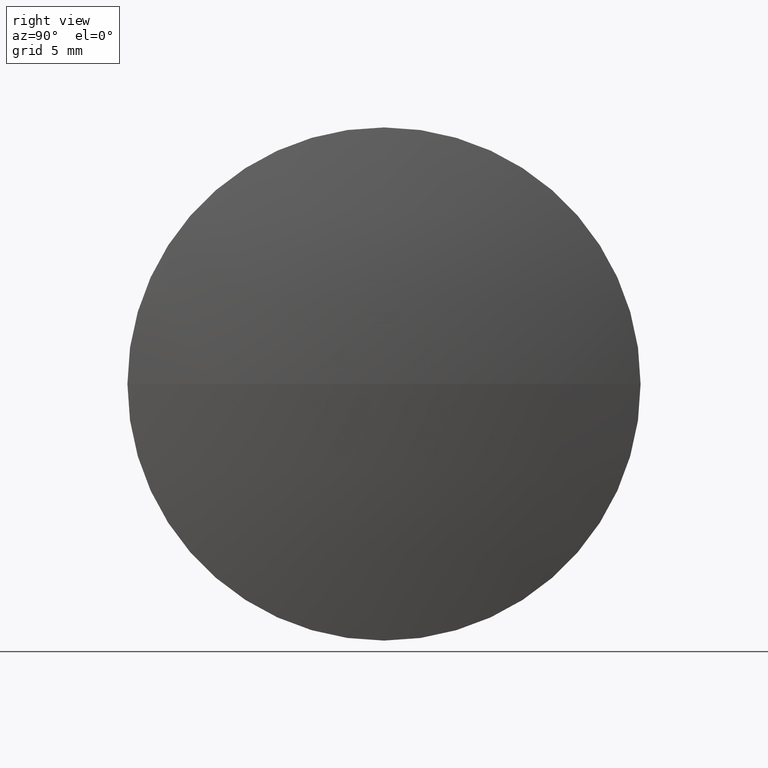
[diagram: clean part render]
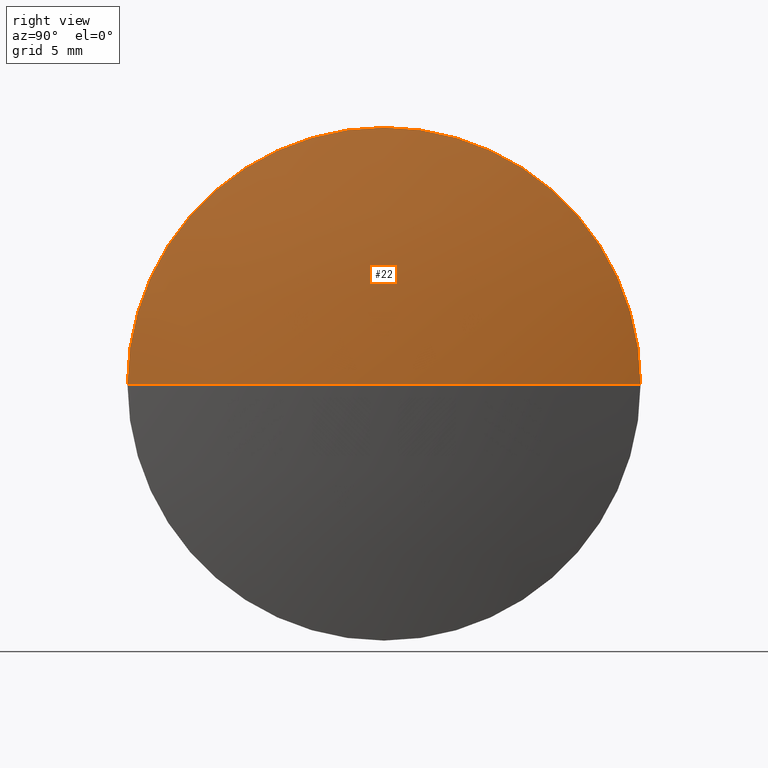
[diagram: same view with one face highlighted and labeled with its STEP entity id]
A machine part, right view. The second image highlights one B-rep face of the part: STEP entity #22.
In plain terms, the highlighted spherical surface has radius 65.1388 mm.
Its self-contained STEP definition (entity closure, byte-faithful):
#1 = DIRECTION ( 'NONE',  ( -1.000000000000000000, 0.0000000000000000000, 0.0000000000000000000 ) ) ;
#2 = CARTESIAN_POINT ( 'NONE',  ( 23.56909853311203000, 48.61611302318482300, 0.0000000000000000000 ) ) ;
#18 = DIRECTION ( 'NONE',  ( 0.0000000000000000000, -1.000000000000000000, -1.224646799147353200E-016 ) ) ;
#22 = ADVANCED_FACE ( 'NONE', ( #79 ), #268, .T. ) ;
#24 = AXIS2_PLACEMENT_3D ( 'NONE', #2, #322, #1 ) ;
#28 = CARTESIAN_POINT ( 'NONE',  ( 88.70790806037683800, 48.61611302318481600, 0.0000000000000000000 ) ) ;
#32 = EDGE_CURVE ( 'NONE', #237, #265, #344, .T. ) ;
#48 = DIRECTION ( 'NONE',  ( 0.0000000000000000000, 0.0000000000000000000, 1.000000000000000000 ) ) ;
#54 = DIRECTION ( 'NONE',  ( 0.0000000000000000000, 0.0000000000000000000, 1.000000000000000000 ) ) ;
#55 = AXIS2_PLACEMENT_3D ( 'NONE', #136, #83, #18 ) ;
#61 = ORIENTED_EDGE ( 'NONE', *, *, #93, .T. ) ;
#79 = FACE_OUTER_BOUND ( 'NONE', #115, .T. ) ;
#83 = DIRECTION ( 'NONE',  ( 0.0000000000000000000, -1.224646799147353200E-016, 1.000000000000000000 ) ) ;
#89 = CIRCLE ( 'NONE', #24, 65.13880952726481200 ) ;
#93 = EDGE_CURVE ( 'NONE', #295, #160, #196, .T. ) ;
#99 = EDGE_CURVE ( 'NONE', #265, #160, #203, .T. ) ;
#102 = CARTESIAN_POINT ( 'NONE',  ( 23.56909853311203000, 48.61611302318482300, 0.0000000000000000000 ) ) ;
#115 = EDGE_LOOP ( 'NONE', ( #275, #61, #219, #302 ) ) ;
#117 = DIRECTION ( 'NONE',  ( -1.000000000000000000, -0.0000000000000000000, -0.0000000000000000000 ) ) ;
#118 = CARTESIAN_POINT ( 'NONE',  ( 87.45786520323397900, 35.91611302318481300, 0.0000000000000000000 ) ) ;
#136 = CARTESIAN_POINT ( 'NONE',  ( 23.56909853311203000, 48.61611302318482300, 0.0000000000000000000 ) ) ;
#138 = CARTESIAN_POINT ( 'NONE',  ( 87.45786520323396500, 48.61611302318478100, 0.0000000000000000000 ) ) ;
#160 = VERTEX_POINT ( 'NONE', #279 ) ;
#165 = DIRECTION ( 'NONE',  ( -1.000000000000000000, -0.0000000000000000000, -0.0000000000000000000 ) ) ;
#196 = CIRCLE ( 'NONE', #55, 65.13880952726481200 ) ;
#203 = CIRCLE ( 'NONE', #316, 12.69999999999999600 ) ;
#210 = DIRECTION ( 'NONE',  ( 0.0000000000000000000, 0.0000000000000000000, 1.000000000000000000 ) ) ;
#219 = ORIENTED_EDGE ( 'NONE', *, *, #99, .F. ) ;
#226 = EDGE_CURVE ( 'NONE', #295, #237, #89, .T. ) ;
#233 = CARTESIAN_POINT ( 'NONE',  ( 87.45786520323396500, 48.61611302318478100, 12.69999999999999600 ) ) ;
#237 = VERTEX_POINT ( 'NONE', #118 ) ;
#254 = AXIS2_PLACEMENT_3D ( 'NONE', #138, #165, #210 ) ;
#264 = DIRECTION ( 'NONE',  ( 0.0000000000000000000, -1.000000000000000000, 0.0000000000000000000 ) ) ;
#265 = VERTEX_POINT ( 'NONE', #233 ) ;
#268 = SPHERICAL_SURFACE ( 'NONE', #308, 65.13880952726481200 ) ;
#275 = ORIENTED_EDGE ( 'NONE', *, *, #226, .F. ) ;
#277 = CARTESIAN_POINT ( 'NONE',  ( 87.45786520323396500, 48.61611302318478100, 0.0000000000000000000 ) ) ;
#279 = CARTESIAN_POINT ( 'NONE',  ( 87.45786520323397900, 61.31611302318479100, 1.555301434917135300E-015 ) ) ;
#295 = VERTEX_POINT ( 'NONE', #28 ) ;
#302 = ORIENTED_EDGE ( 'NONE', *, *, #32, .F. ) ;
#308 = AXIS2_PLACEMENT_3D ( 'NONE', #102, #54, #264 ) ;
#316 = AXIS2_PLACEMENT_3D ( 'NONE', #277, #117, #48 ) ;
#322 = DIRECTION ( 'NONE',  ( 0.0000000000000000000, 0.0000000000000000000, -1.000000000000000000 ) ) ;
#344 = CIRCLE ( 'NONE', #254, 12.69999999999999600 ) ;